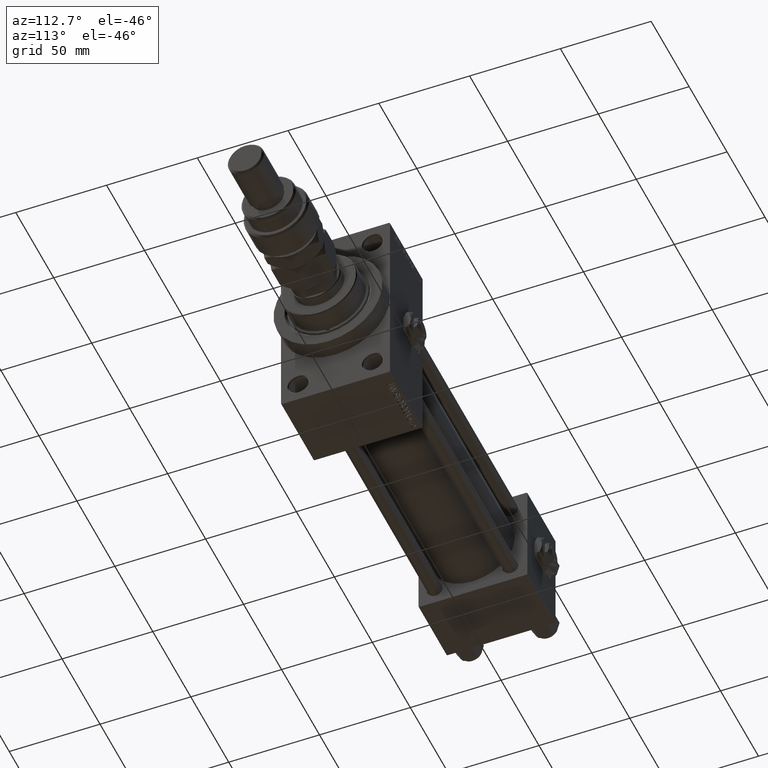
[diagram: clean part render]
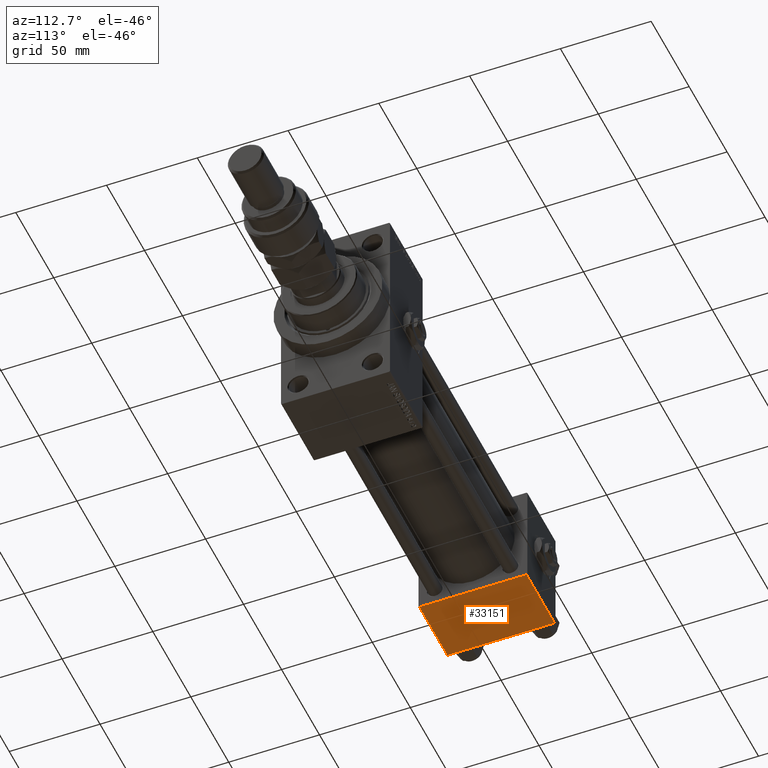
[diagram: same view with one face highlighted and labeled with its STEP entity id]
A machine part, auxiliary view. The second image highlights one B-rep face of the part: STEP entity #33151.
In plain terms, the highlighted planar face has unit normal (0, 0, -1).
Its self-contained STEP definition (entity closure, byte-faithful):
#595 = CARTESIAN_POINT ( 'NONE',  ( 37.00000000000000000, 29.99999999999999289, -30.00000000000000000 ) ) ;
#1748 = VERTEX_POINT ( 'NONE', #23902 ) ;
#2962 = DIRECTION ( 'NONE',  ( 0.000000000000000000, 1.000000000000000000, 1.156482317317871725E-16 ) ) ;
#3586 = LINE ( 'NONE', #52113, #48999 ) ;
#3793 = DIRECTION ( 'NONE',  ( -1.000000000000000000, 0.000000000000000000, 0.000000000000000000 ) ) ;
#6343 = LINE ( 'NONE', #19060, #36990 ) ;
#6595 = DIRECTION ( 'NONE',  ( 0.000000000000000000, -1.000000000000000000, -1.156482317317871725E-16 ) ) ;
#9048 = EDGE_LOOP ( 'NONE', ( #35923, #15903, #28492, #18832 ) ) ;
#10809 = VERTEX_POINT ( 'NONE', #24636 ) ;
#10982 = CARTESIAN_POINT ( 'NONE',  ( 0.000000000000000000, 29.49999999999997868, -30.00000000000000000 ) ) ;
#11310 = VERTEX_POINT ( 'NONE', #10982 ) ;
#15549 = EDGE_CURVE ( 'NONE', #1748, #10809, #23930, .T. ) ;
#15903 = ORIENTED_EDGE ( 'NONE', *, *, #49680, .T. ) ;
#16761 = DIRECTION ( 'NONE',  ( 0.000000000000000000, -1.000000000000000000, -1.156482317317871725E-16 ) ) ;
#17781 = AXIS2_PLACEMENT_3D ( 'NONE', #42046, #37801, #2962 ) ;
#18832 = ORIENTED_EDGE ( 'NONE', *, *, #15549, .T. ) ;
#19060 = CARTESIAN_POINT ( 'NONE',  ( 0.000000000000000000, 29.99999999999999289, -30.00000000000000000 ) ) ;
#20276 = DIRECTION ( 'NONE',  ( 1.000000000000000000, 0.000000000000000000, 0.000000000000000000 ) ) ;
#23902 = CARTESIAN_POINT ( 'NONE',  ( 37.00000000000000000, -29.50000000000000000, -30.00000000000000711 ) ) ;
#23930 = LINE ( 'NONE', #40137, #43440 ) ;
#24636 = CARTESIAN_POINT ( 'NONE',  ( 0.000000000000000000, -29.50000000000000000, -30.00000000000000711 ) ) ;
#24953 = LINE ( 'NONE', #595, #44740 ) ;
#26862 = EDGE_CURVE ( 'NONE', #11310, #10809, #6343, .T. ) ;
#27580 = CARTESIAN_POINT ( 'NONE',  ( 37.00000000000000000, 29.49999999999997868, -30.00000000000000000 ) ) ;
#28492 = ORIENTED_EDGE ( 'NONE', *, *, #31471, .T. ) ;
#31061 = PLANE ( 'NONE',  #17781 ) ;
#31471 = EDGE_CURVE ( 'NONE', #46455, #1748, #24953, .T. ) ;
#33151 = ADVANCED_FACE ( 'NONE', ( #47261 ), #31061, .T. ) ;
#35923 = ORIENTED_EDGE ( 'NONE', *, *, #26862, .F. ) ;
#36990 = VECTOR ( 'NONE', #6595, 1000.000000000000000 ) ;
#37801 = DIRECTION ( 'NONE',  ( 0.000000000000000000, 1.156482317317871725E-16, -1.000000000000000000 ) ) ;
#40137 = CARTESIAN_POINT ( 'NONE',  ( 0.000000000000000000, -29.50000000000001066, -30.00000000000000711 ) ) ;
#42046 = CARTESIAN_POINT ( 'NONE',  ( 37.00000000000000000, 29.99999999999999289, -30.00000000000000000 ) ) ;
#43440 = VECTOR ( 'NONE', #3793, 1000.000000000000000 ) ;
#44740 = VECTOR ( 'NONE', #16761, 1000.000000000000000 ) ;
#46455 = VERTEX_POINT ( 'NONE', #27580 ) ;
#47261 = FACE_OUTER_BOUND ( 'NONE', #9048, .T. ) ;
#48999 = VECTOR ( 'NONE', #20276, 1000.000000000000000 ) ;
#49680 = EDGE_CURVE ( 'NONE', #11310, #46455, #3586, .T. ) ;
#52113 = CARTESIAN_POINT ( 'NONE',  ( 37.00000000000000000, 29.49999999999997868, -30.00000000000000000 ) ) ;